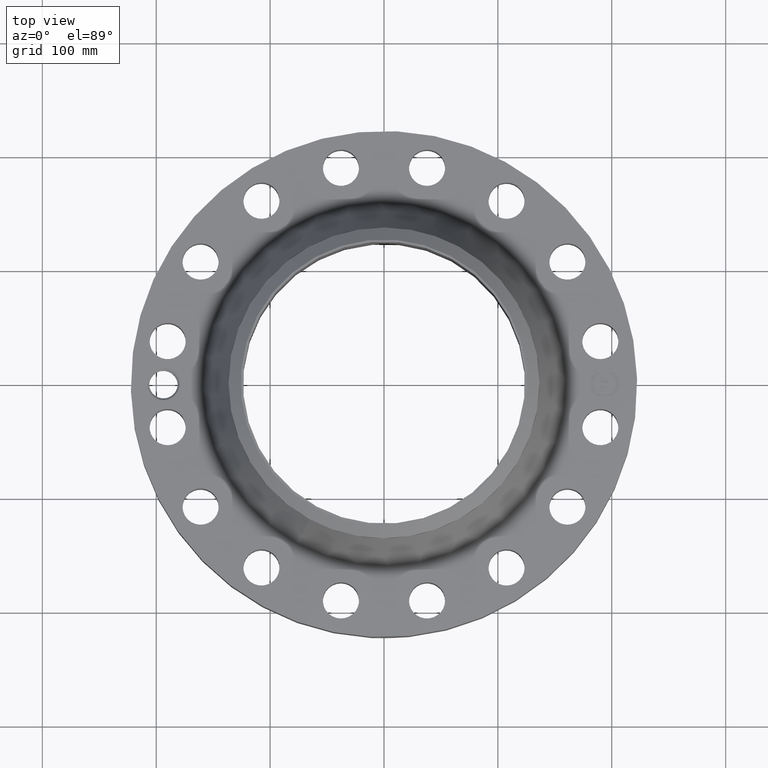
[diagram: clean part render]
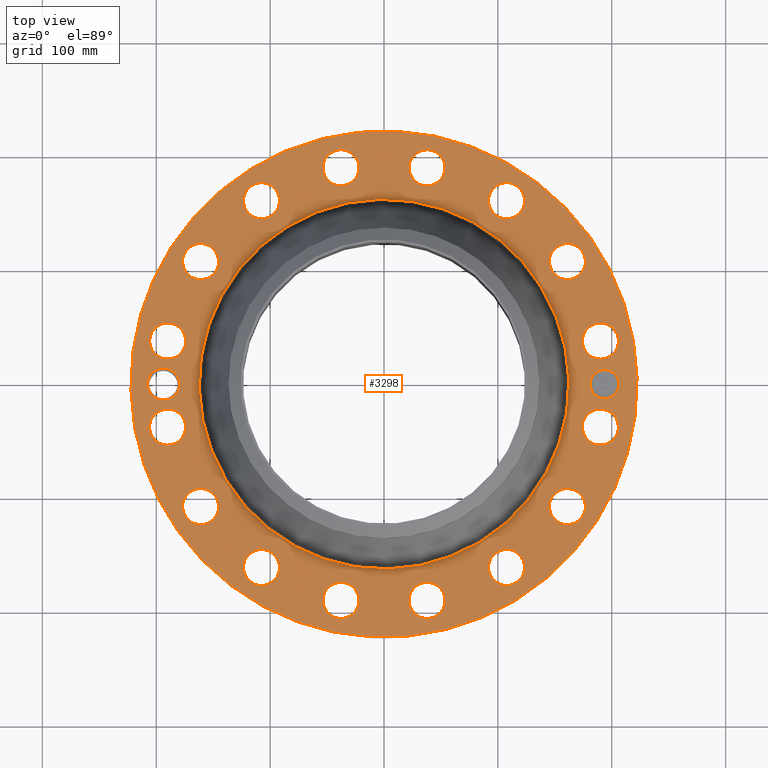
[diagram: same view with one face highlighted and labeled with its STEP entity id]
A machine part, top view. The second image highlights one B-rep face of the part: STEP entity #3298.
In plain terms, the highlighted planar face has unit normal (0, 0, -1).
Its self-contained STEP definition (entity closure, byte-faithful):
#2190=AXIS2_PLACEMENT_3D('Circle Axis2P3D',#2188,#2189,$) ;
#2216=AXIS2_PLACEMENT_3D('Circle Axis2P3D',#2214,#2215,$) ;
#2914=AXIS2_PLACEMENT_3D('Plane Axis2P3D',#2911,#2912,#2913) ;
#2918=AXIS2_PLACEMENT_3D('Circle Axis2P3D',#2916,#2917,$) ;
#2927=AXIS2_PLACEMENT_3D('Circle Axis2P3D',#2925,#2926,$) ;
#2964=AXIS2_PLACEMENT_3D('Circle Axis2P3D',#2962,#2963,$) ;
#2971=AXIS2_PLACEMENT_3D('Circle Axis2P3D',#2969,#2970,$) ;
#2978=AXIS2_PLACEMENT_3D('Circle Axis2P3D',#2976,#2977,$) ;
#2990=AXIS2_PLACEMENT_3D('Circle Axis2P3D',#2988,#2989,$) ;
#2999=AXIS2_PLACEMENT_3D('Circle Axis2P3D',#2997,#2998,$) ;
#3012=AXIS2_PLACEMENT_3D('Circle Axis2P3D',#3010,#3011,$) ;
#3021=AXIS2_PLACEMENT_3D('Circle Axis2P3D',#3019,#3020,$) ;
#3030=AXIS2_PLACEMENT_3D('Circle Axis2P3D',#3028,#3029,$) ;
#3039=AXIS2_PLACEMENT_3D('Circle Axis2P3D',#3037,#3038,$) ;
#3048=AXIS2_PLACEMENT_3D('Circle Axis2P3D',#3046,#3047,$) ;
#3057=AXIS2_PLACEMENT_3D('Circle Axis2P3D',#3055,#3056,$) ;
#3066=AXIS2_PLACEMENT_3D('Circle Axis2P3D',#3064,#3065,$) ;
#3075=AXIS2_PLACEMENT_3D('Circle Axis2P3D',#3073,#3074,$) ;
#3084=AXIS2_PLACEMENT_3D('Circle Axis2P3D',#3082,#3083,$) ;
#3093=AXIS2_PLACEMENT_3D('Circle Axis2P3D',#3091,#3092,$) ;
#3102=AXIS2_PLACEMENT_3D('Circle Axis2P3D',#3100,#3101,$) ;
#3111=AXIS2_PLACEMENT_3D('Circle Axis2P3D',#3109,#3110,$) ;
#3120=AXIS2_PLACEMENT_3D('Circle Axis2P3D',#3118,#3119,$) ;
#3129=AXIS2_PLACEMENT_3D('Circle Axis2P3D',#3127,#3128,$) ;
#3138=AXIS2_PLACEMENT_3D('Circle Axis2P3D',#3136,#3137,$) ;
#3147=AXIS2_PLACEMENT_3D('Circle Axis2P3D',#3145,#3146,$) ;
#3156=AXIS2_PLACEMENT_3D('Circle Axis2P3D',#3154,#3155,$) ;
#3165=AXIS2_PLACEMENT_3D('Circle Axis2P3D',#3163,#3164,$) ;
#3174=AXIS2_PLACEMENT_3D('Circle Axis2P3D',#3172,#3173,$) ;
#3183=AXIS2_PLACEMENT_3D('Circle Axis2P3D',#3181,#3182,$) ;
#3192=AXIS2_PLACEMENT_3D('Circle Axis2P3D',#3190,#3191,$) ;
#3201=AXIS2_PLACEMENT_3D('Circle Axis2P3D',#3199,#3200,$) ;
#3210=AXIS2_PLACEMENT_3D('Circle Axis2P3D',#3208,#3209,$) ;
#3219=AXIS2_PLACEMENT_3D('Circle Axis2P3D',#3217,#3218,$) ;
#3228=AXIS2_PLACEMENT_3D('Circle Axis2P3D',#3226,#3227,$) ;
#3237=AXIS2_PLACEMENT_3D('Circle Axis2P3D',#3235,#3236,$) ;
#3246=AXIS2_PLACEMENT_3D('Circle Axis2P3D',#3244,#3245,$) ;
#3255=AXIS2_PLACEMENT_3D('Circle Axis2P3D',#3253,#3254,$) ;
#3264=AXIS2_PLACEMENT_3D('Circle Axis2P3D',#3262,#3263,$) ;
#3273=AXIS2_PLACEMENT_3D('Circle Axis2P3D',#3271,#3272,$) ;
#3282=AXIS2_PLACEMENT_3D('Circle Axis2P3D',#3280,#3281,$) ;
#3291=AXIS2_PLACEMENT_3D('Circle Axis2P3D',#3289,#3290,$) ;
#2188=CARTESIAN_POINT('Axis2P3D Location',(0.,0.,2.43200000001)) ;
#2192=CARTESIAN_POINT('Vertex',(-3.06323934998,-5.60722201881,2.43200000001)) ;
#2194=CARTESIAN_POINT('Vertex',(3.06323934998,5.60722201881,2.43200000001)) ;
#2214=CARTESIAN_POINT('Axis2P3D Location',(0.,0.,2.43200000001)) ;
#2911=CARTESIAN_POINT('Axis2P3D Location',(0.,8.75000000003,2.43200000001)) ;
#2916=CARTESIAN_POINT('Axis2P3D Location',(0.,0.,2.43200000001)) ;
#2920=CARTESIAN_POINT('Vertex',(4.1949734628,7.67884741657,2.43200000001)) ;
#2922=CARTESIAN_POINT('Vertex',(-4.1949734628,-7.67884741657,2.43200000001)) ;
#2925=CARTESIAN_POINT('Axis2P3D Location',(0.,0.,2.43200000001)) ;
#2935=CARTESIAN_POINT('Control Point',(-7.06250000003,-1.1189649382E-015,2.43200000001)) ;
#2936=CARTESIAN_POINT('Control Point',(-7.0644627071,0.0486163891035,2.43200000001)) ;
#2937=CARTESIAN_POINT('Control Point',(-7.07168226292,0.096921534592,2.43200000001)) ;
#2938=CARTESIAN_POINT('Control Point',(-7.08411615333,0.144151114334,2.43200000001)) ;
#2939=CARTESIAN_POINT('Control Point',(-7.10232815503,0.191577647422,2.43200000001)) ;
#2940=CARTESIAN_POINT('Control Point',(-7.12559967874,0.236271997067,2.43200000001)) ;
#2941=CARTESIAN_POINT('Control Point',(-7.1266042728,0.238178606451,2.43200000001)) ;
#2942=CARTESIAN_POINT('Control Point',(-7.12761805794,0.240080097807,2.43200000001)) ;
#2943=CARTESIAN_POINT('Control Point',(-7.12864100075,0.241976411744,2.43200000001)) ;
#2944=CARTESIAN_POINT('Vertex',(-7.06250000003,-1.1189649382E-015,2.43200000001)) ;
#2946=CARTESIAN_POINT('Vertex',(-7.12864100075,0.241976411744,2.43200000001)) ;
#2950=CARTESIAN_POINT('Control Point',(-7.06250000003,0.,2.43200000001)) ;
#2951=CARTESIAN_POINT('Control Point',(-7.06446331377,-0.0486314172929,2.43200000001)) ;
#2952=CARTESIAN_POINT('Control Point',(-7.07168673508,-0.0969513969447,2.43200000001)) ;
#2953=CARTESIAN_POINT('Control Point',(-7.08411919902,-0.144176906439,2.43200000001)) ;
#2954=CARTESIAN_POINT('Control Point',(-7.10234823128,-0.191650860834,2.43200000001)) ;
#2955=CARTESIAN_POINT('Control Point',(-7.1256352366,-0.236368689457,2.43200000001)) ;
#2956=CARTESIAN_POINT('Control Point',(-7.12667414521,-0.238339350733,2.43200000001)) ;
#2957=CARTESIAN_POINT('Control Point',(-7.12772285779,-0.240304498267,2.43200000001)) ;
#2958=CARTESIAN_POINT('Control Point',(-7.12878133662,-0.242264066853,2.43200000001)) ;
#2959=CARTESIAN_POINT('Vertex',(-7.12878133662,-0.242264066853,2.43200000001)) ;
#2962=CARTESIAN_POINT('Axis2P3D Location',(-7.62500000003,0.,2.43200000001)) ;
#2966=CARTESIAN_POINT('Vertex',(-7.14039890935,-0.264738782418,2.43200000001)) ;
#2969=CARTESIAN_POINT('Axis2P3D Location',(-7.62500000003,0.,2.43200000001)) ;
#2973=CARTESIAN_POINT('Vertex',(-8.10960109071,0.264738782418,2.43200000001)) ;
#2976=CARTESIAN_POINT('Axis2P3D Location',(-7.62500000003,0.,2.43200000001)) ;
#2988=CARTESIAN_POINT('Axis2P3D Location',(7.4784877631,-1.48756370538,2.43200000001)) ;
#2992=CARTESIAN_POINT('Vertex',(6.92999866192,-1.18792274375,2.43200000001)) ;
#2994=CARTESIAN_POINT('Vertex',(8.02697686429,-1.78720466701,2.43200000001)) ;
#2997=CARTESIAN_POINT('Axis2P3D Location',(7.4784877631,-1.48756370538,2.43200000001)) ;
#3010=CARTESIAN_POINT('Axis2P3D Location',(6.33995579383,-4.23622302679,2.43200000001)) ;
#3014=CARTESIAN_POINT('Vertex',(6.73202601655,-4.7229528702,2.43200000001)) ;
#3016=CARTESIAN_POINT('Vertex',(5.94788557112,-3.74949318338,2.43200000001)) ;
#3019=CARTESIAN_POINT('Axis2P3D Location',(6.33995579383,-4.23622302679,2.43200000001)) ;
#3028=CARTESIAN_POINT('Axis2P3D Location',(4.23622302679,-6.33995579383,2.43200000001)) ;
#3032=CARTESIAN_POINT('Vertex',(4.41218523376,-6.93967431258,2.43200000001)) ;
#3034=CARTESIAN_POINT('Vertex',(4.06026081983,-5.74023727509,2.43200000001)) ;
#3037=CARTESIAN_POINT('Axis2P3D Location',(4.23622302679,-6.33995579383,2.43200000001)) ;
#3046=CARTESIAN_POINT('Axis2P3D Location',(1.48756370538,-7.4784877631,2.43200000001)) ;
#3050=CARTESIAN_POINT('Vertex',(1.42062924568,-8.09989324917,2.43200000001)) ;
#3052=CARTESIAN_POINT('Vertex',(1.55449816507,-6.85708227704,2.43200000001)) ;
#3055=CARTESIAN_POINT('Axis2P3D Location',(1.48756370538,-7.4784877631,2.43200000001)) ;
#3064=CARTESIAN_POINT('Axis2P3D Location',(-1.48756370538,-7.4784877631,2.43200000001)) ;
#3068=CARTESIAN_POINT('Vertex',(-1.78720466701,-8.02697686429,2.43200000001)) ;
#3070=CARTESIAN_POINT('Vertex',(-1.18792274375,-6.92999866192,2.43200000001)) ;
#3073=CARTESIAN_POINT('Axis2P3D Location',(-1.48756370538,-7.4784877631,2.43200000001)) ;
#3082=CARTESIAN_POINT('Axis2P3D Location',(-4.23622302679,-6.33995579383,2.43200000001)) ;
#3086=CARTESIAN_POINT('Vertex',(-4.7229528702,-6.73202601655,2.43200000001)) ;
#3088=CARTESIAN_POINT('Vertex',(-3.74949318338,-5.94788557112,2.43200000001)) ;
#3091=CARTESIAN_POINT('Axis2P3D Location',(-4.23622302679,-6.33995579383,2.43200000001)) ;
#3100=CARTESIAN_POINT('Axis2P3D Location',(-6.33995579383,-4.23622302679,2.43200000001)) ;
#3104=CARTESIAN_POINT('Vertex',(-6.93967431258,-4.41218523376,2.43200000001)) ;
#3106=CARTESIAN_POINT('Vertex',(-5.74023727509,-4.06026081983,2.43200000001)) ;
#3109=CARTESIAN_POINT('Axis2P3D Location',(-6.33995579383,-4.23622302679,2.43200000001)) ;
#3118=CARTESIAN_POINT('Axis2P3D Location',(-7.4784877631,-1.48756370538,2.43200000001)) ;
#3122=CARTESIAN_POINT('Vertex',(-8.09989324917,-1.42062924568,2.43200000001)) ;
#3124=CARTESIAN_POINT('Vertex',(-6.85708227704,-1.55449816507,2.43200000001)) ;
#3127=CARTESIAN_POINT('Axis2P3D Location',(-7.4784877631,-1.48756370538,2.43200000001)) ;
#3136=CARTESIAN_POINT('Axis2P3D Location',(-7.4784877631,1.48756370538,2.43200000001)) ;
#3140=CARTESIAN_POINT('Vertex',(-8.02697686429,1.78720466701,2.43200000001)) ;
#3142=CARTESIAN_POINT('Vertex',(-6.92999866192,1.18792274375,2.43200000001)) ;
#3145=CARTESIAN_POINT('Axis2P3D Location',(-7.4784877631,1.48756370538,2.43200000001)) ;
#3154=CARTESIAN_POINT('Axis2P3D Location',(-6.33995579383,4.23622302679,2.43200000001)) ;
#3158=CARTESIAN_POINT('Vertex',(-6.73202601655,4.7229528702,2.43200000001)) ;
#3160=CARTESIAN_POINT('Vertex',(-5.94788557112,3.74949318338,2.43200000001)) ;
#3163=CARTESIAN_POINT('Axis2P3D Location',(-6.33995579383,4.23622302679,2.43200000001)) ;
#3172=CARTESIAN_POINT('Axis2P3D Location',(-4.23622302679,6.33995579383,2.43200000001)) ;
#3176=CARTESIAN_POINT('Vertex',(-4.41218523376,6.93967431258,2.43200000001)) ;
#3178=CARTESIAN_POINT('Vertex',(-4.06026081983,5.74023727509,2.43200000001)) ;
#3181=CARTESIAN_POINT('Axis2P3D Location',(-4.23622302679,6.33995579383,2.43200000001)) ;
#3190=CARTESIAN_POINT('Axis2P3D Location',(-1.48756370538,7.4784877631,2.43200000001)) ;
#3194=CARTESIAN_POINT('Vertex',(-1.42062924568,8.09989324917,2.43200000001)) ;
#3196=CARTESIAN_POINT('Vertex',(-1.55449816507,6.85708227704,2.43200000001)) ;
#3199=CARTESIAN_POINT('Axis2P3D Location',(-1.48756370538,7.4784877631,2.43200000001)) ;
#3208=CARTESIAN_POINT('Axis2P3D Location',(1.48756370538,7.4784877631,2.43200000001)) ;
#3212=CARTESIAN_POINT('Vertex',(1.78720466701,8.02697686429,2.43200000001)) ;
#3214=CARTESIAN_POINT('Vertex',(1.18792274375,6.92999866192,2.43200000001)) ;
#3217=CARTESIAN_POINT('Axis2P3D Location',(1.48756370538,7.4784877631,2.43200000001)) ;
#3226=CARTESIAN_POINT('Axis2P3D Location',(4.23622302679,6.33995579383,2.43200000001)) ;
#3230=CARTESIAN_POINT('Vertex',(4.7229528702,6.73202601655,2.43200000001)) ;
#3232=CARTESIAN_POINT('Vertex',(3.74949318338,5.94788557112,2.43200000001)) ;
#3235=CARTESIAN_POINT('Axis2P3D Location',(4.23622302679,6.33995579383,2.43200000001)) ;
#3244=CARTESIAN_POINT('Axis2P3D Location',(6.33995579383,4.23622302679,2.43200000001)) ;
#3248=CARTESIAN_POINT('Vertex',(6.93967431258,4.41218523376,2.43200000001)) ;
#3250=CARTESIAN_POINT('Vertex',(5.74023727509,4.06026081983,2.43200000001)) ;
#3253=CARTESIAN_POINT('Axis2P3D Location',(6.33995579383,4.23622302679,2.43200000001)) ;
#3262=CARTESIAN_POINT('Axis2P3D Location',(7.4784877631,1.48756370538,2.43200000001)) ;
#3266=CARTESIAN_POINT('Vertex',(8.09989324917,1.42062924568,2.43200000001)) ;
#3268=CARTESIAN_POINT('Vertex',(6.85708227704,1.55449816507,2.43200000001)) ;
#3271=CARTESIAN_POINT('Axis2P3D Location',(7.4784877631,1.48756370538,2.43200000001)) ;
#3280=CARTESIAN_POINT('Axis2P3D Location',(7.62500000003,-3.35689481461E-014,2.43200000001)) ;
#3284=CARTESIAN_POINT('Vertex',(7.62500000003,0.499999995002,2.43200000001)) ;
#3286=CARTESIAN_POINT('Vertex',(7.62500000003,-0.499999995002,2.43200000001)) ;
#3289=CARTESIAN_POINT('Axis2P3D Location',(7.62500000003,-3.24499832079E-014,2.43200000001)) ;
#2189=DIRECTION('Axis2P3D Direction',(0.,0.,-0.0393700787402)) ;
#2215=DIRECTION('Axis2P3D Direction',(0.,0.,-0.0393700787402)) ;
#2912=DIRECTION('Axis2P3D Direction',(0.,0.,-0.0393700787402)) ;
#2913=DIRECTION('Axis2P3D XDirection',(0.0393700787402,0.,0.)) ;
#2917=DIRECTION('Axis2P3D Direction',(0.,0.,-0.0393700787402)) ;
#2926=DIRECTION('Axis2P3D Direction',(0.,0.,-0.0393700787402)) ;
#2963=DIRECTION('Axis2P3D Direction',(0.,0.,-0.0393700787402)) ;
#2970=DIRECTION('Axis2P3D Direction',(0.,0.,-0.0393700787402)) ;
#2977=DIRECTION('Axis2P3D Direction',(0.,0.,-0.0393700787402)) ;
#2989=DIRECTION('Axis2P3D Direction',(0.,0.,-0.0393700787402)) ;
#2998=DIRECTION('Axis2P3D Direction',(0.,0.,-0.0393700787402)) ;
#3011=DIRECTION('Axis2P3D Direction',(0.,0.,-0.0393700787402)) ;
#3020=DIRECTION('Axis2P3D Direction',(0.,0.,-0.0393700787402)) ;
#3029=DIRECTION('Axis2P3D Direction',(0.,0.,-0.0393700787402)) ;
#3038=DIRECTION('Axis2P3D Direction',(0.,0.,-0.0393700787402)) ;
#3047=DIRECTION('Axis2P3D Direction',(0.,0.,-0.0393700787402)) ;
#3056=DIRECTION('Axis2P3D Direction',(0.,0.,-0.0393700787402)) ;
#3065=DIRECTION('Axis2P3D Direction',(0.,0.,-0.0393700787402)) ;
#3074=DIRECTION('Axis2P3D Direction',(0.,0.,-0.0393700787402)) ;
#3083=DIRECTION('Axis2P3D Direction',(0.,0.,-0.0393700787402)) ;
#3092=DIRECTION('Axis2P3D Direction',(0.,0.,-0.0393700787402)) ;
#3101=DIRECTION('Axis2P3D Direction',(0.,0.,-0.0393700787402)) ;
#3110=DIRECTION('Axis2P3D Direction',(0.,0.,-0.0393700787402)) ;
#3119=DIRECTION('Axis2P3D Direction',(0.,0.,-0.0393700787402)) ;
#3128=DIRECTION('Axis2P3D Direction',(0.,0.,-0.0393700787402)) ;
#3137=DIRECTION('Axis2P3D Direction',(0.,0.,-0.0393700787402)) ;
#3146=DIRECTION('Axis2P3D Direction',(0.,0.,-0.0393700787402)) ;
#3155=DIRECTION('Axis2P3D Direction',(0.,0.,-0.0393700787402)) ;
#3164=DIRECTION('Axis2P3D Direction',(0.,0.,-0.0393700787402)) ;
#3173=DIRECTION('Axis2P3D Direction',(0.,0.,-0.0393700787402)) ;
#3182=DIRECTION('Axis2P3D Direction',(0.,0.,-0.0393700787402)) ;
#3191=DIRECTION('Axis2P3D Direction',(0.,0.,-0.0393700787402)) ;
#3200=DIRECTION('Axis2P3D Direction',(0.,0.,-0.0393700787402)) ;
#3209=DIRECTION('Axis2P3D Direction',(0.,0.,-0.0393700787402)) ;
#3218=DIRECTION('Axis2P3D Direction',(0.,0.,-0.0393700787402)) ;
#3227=DIRECTION('Axis2P3D Direction',(0.,0.,-0.0393700787402)) ;
#3236=DIRECTION('Axis2P3D Direction',(0.,0.,-0.0393700787402)) ;
#3245=DIRECTION('Axis2P3D Direction',(0.,0.,-0.0393700787402)) ;
#3254=DIRECTION('Axis2P3D Direction',(0.,0.,-0.0393700787402)) ;
#3263=DIRECTION('Axis2P3D Direction',(0.,0.,-0.0393700787402)) ;
#3272=DIRECTION('Axis2P3D Direction',(0.,0.,-0.0393700787402)) ;
#3281=DIRECTION('Axis2P3D Direction',(0.,0.,-0.0393700787402)) ;
#3290=DIRECTION('Axis2P3D Direction',(0.,0.,-0.0393700787402)) ;
#2931=ORIENTED_EDGE('',*,*,#2924,.F.) ;
#2932=ORIENTED_EDGE('',*,*,#2929,.F.) ;
#2982=ORIENTED_EDGE('',*,*,#2948,.F.) ;
#2983=ORIENTED_EDGE('',*,*,#2961,.T.) ;
#2984=ORIENTED_EDGE('',*,*,#2968,.T.) ;
#2985=ORIENTED_EDGE('',*,*,#2975,.T.) ;
#2986=ORIENTED_EDGE('',*,*,#2980,.T.) ;
#3003=ORIENTED_EDGE('',*,*,#2996,.T.) ;
#3004=ORIENTED_EDGE('',*,*,#3001,.T.) ;
#3007=ORIENTED_EDGE('',*,*,#2196,.T.) ;
#3008=ORIENTED_EDGE('',*,*,#2218,.T.) ;
#3025=ORIENTED_EDGE('',*,*,#3018,.T.) ;
#3026=ORIENTED_EDGE('',*,*,#3023,.T.) ;
#3043=ORIENTED_EDGE('',*,*,#3036,.T.) ;
#3044=ORIENTED_EDGE('',*,*,#3041,.T.) ;
#3061=ORIENTED_EDGE('',*,*,#3054,.T.) ;
#3062=ORIENTED_EDGE('',*,*,#3059,.T.) ;
#3079=ORIENTED_EDGE('',*,*,#3072,.T.) ;
#3080=ORIENTED_EDGE('',*,*,#3077,.T.) ;
#3097=ORIENTED_EDGE('',*,*,#3090,.T.) ;
#3098=ORIENTED_EDGE('',*,*,#3095,.T.) ;
#3115=ORIENTED_EDGE('',*,*,#3108,.T.) ;
#3116=ORIENTED_EDGE('',*,*,#3113,.T.) ;
#3133=ORIENTED_EDGE('',*,*,#3126,.T.) ;
#3134=ORIENTED_EDGE('',*,*,#3131,.T.) ;
#3151=ORIENTED_EDGE('',*,*,#3144,.T.) ;
#3152=ORIENTED_EDGE('',*,*,#3149,.T.) ;
#3169=ORIENTED_EDGE('',*,*,#3162,.T.) ;
#3170=ORIENTED_EDGE('',*,*,#3167,.T.) ;
#3187=ORIENTED_EDGE('',*,*,#3180,.T.) ;
#3188=ORIENTED_EDGE('',*,*,#3185,.T.) ;
#3205=ORIENTED_EDGE('',*,*,#3198,.T.) ;
#3206=ORIENTED_EDGE('',*,*,#3203,.T.) ;
#3223=ORIENTED_EDGE('',*,*,#3216,.T.) ;
#3224=ORIENTED_EDGE('',*,*,#3221,.T.) ;
#3241=ORIENTED_EDGE('',*,*,#3234,.T.) ;
#3242=ORIENTED_EDGE('',*,*,#3239,.T.) ;
#3259=ORIENTED_EDGE('',*,*,#3252,.T.) ;
#3260=ORIENTED_EDGE('',*,*,#3257,.T.) ;
#3277=ORIENTED_EDGE('',*,*,#3270,.T.) ;
#3278=ORIENTED_EDGE('',*,*,#3275,.T.) ;
#3295=ORIENTED_EDGE('',*,*,#3288,.T.) ;
#3296=ORIENTED_EDGE('',*,*,#3293,.T.) ;
#2987=FACE_BOUND('',#2981,.T.) ;
#3005=FACE_BOUND('',#3002,.T.) ;
#3009=FACE_BOUND('',#3006,.T.) ;
#3027=FACE_BOUND('',#3024,.T.) ;
#3045=FACE_BOUND('',#3042,.T.) ;
#3063=FACE_BOUND('',#3060,.T.) ;
#3081=FACE_BOUND('',#3078,.T.) ;
#3099=FACE_BOUND('',#3096,.T.) ;
#3117=FACE_BOUND('',#3114,.T.) ;
#3135=FACE_BOUND('',#3132,.T.) ;
#3153=FACE_BOUND('',#3150,.T.) ;
#3171=FACE_BOUND('',#3168,.T.) ;
#3189=FACE_BOUND('',#3186,.T.) ;
#3207=FACE_BOUND('',#3204,.T.) ;
#3225=FACE_BOUND('',#3222,.T.) ;
#3243=FACE_BOUND('',#3240,.T.) ;
#3261=FACE_BOUND('',#3258,.T.) ;
#3279=FACE_BOUND('',#3276,.T.) ;
#3297=FACE_BOUND('',#3294,.T.) ;
#3298=ADVANCED_FACE('PartBody',(#2933,#2987,#3005,#3009,#3027,#3045,#3063,#3081,#3099,#3117,#3135,#3153,#3171,#3189,#3207,#3225,#3243,#3261,#3279,#3297),#2915,.F.) ;
#2934=B_SPLINE_CURVE_WITH_KNOTS('',5,(#2935,#2936,#2937,#2938,#2939,#2940,#2941,#2942,#2943),.UNSPECIFIED.,.F.,.U.,(6,3,6),(0.,8.4763650655,8.85511629923),.UNSPECIFIED.) ;
#2949=B_SPLINE_CURVE_WITH_KNOTS('',5,(#2950,#2951,#2952,#2953,#2954,#2955,#2956,#2957,#2958),.UNSPECIFIED.,.F.,.U.,(6,3,6),(0.,8.47898526042,8.87100044023),.UNSPECIFIED.) ;
#2191=CIRCLE('generated circle',#2190,6.38939543959) ;
#2217=CIRCLE('generated circle',#2216,6.38939543959) ;
#2919=CIRCLE('generated circle',#2918,8.75000000003) ;
#2928=CIRCLE('generated circle',#2927,8.75000000003) ;
#2965=CIRCLE('generated circle',#2964,0.552200000002) ;
#2972=CIRCLE('generated circle',#2971,0.552200000002) ;
#2979=CIRCLE('generated circle',#2978,0.552200000002) ;
#2991=CIRCLE('generated circle',#2990,0.625000000002) ;
#3000=CIRCLE('generated circle',#2999,0.625000000002) ;
#3013=CIRCLE('generated circle',#3012,0.625000000003) ;
#3022=CIRCLE('generated circle',#3021,0.625000000003) ;
#3031=CIRCLE('generated circle',#3030,0.625000000002) ;
#3040=CIRCLE('generated circle',#3039,0.625000000002) ;
#3049=CIRCLE('generated circle',#3048,0.625000000003) ;
#3058=CIRCLE('generated circle',#3057,0.625000000003) ;
#3067=CIRCLE('generated circle',#3066,0.625000000002) ;
#3076=CIRCLE('generated circle',#3075,0.625000000002) ;
#3085=CIRCLE('generated circle',#3084,0.625000000003) ;
#3094=CIRCLE('generated circle',#3093,0.625000000003) ;
#3103=CIRCLE('generated circle',#3102,0.625000000002) ;
#3112=CIRCLE('generated circle',#3111,0.625000000002) ;
#3121=CIRCLE('generated circle',#3120,0.625000000003) ;
#3130=CIRCLE('generated circle',#3129,0.625000000003) ;
#3139=CIRCLE('generated circle',#3138,0.625000000002) ;
#3148=CIRCLE('generated circle',#3147,0.625000000002) ;
#3157=CIRCLE('generated circle',#3156,0.625000000003) ;
#3166=CIRCLE('generated circle',#3165,0.625000000003) ;
#3175=CIRCLE('generated circle',#3174,0.625000000002) ;
#3184=CIRCLE('generated circle',#3183,0.625000000002) ;
#3193=CIRCLE('generated circle',#3192,0.625000000003) ;
#3202=CIRCLE('generated circle',#3201,0.625000000003) ;
#3211=CIRCLE('generated circle',#3210,0.625000000002) ;
#3220=CIRCLE('generated circle',#3219,0.625000000002) ;
#3229=CIRCLE('generated circle',#3228,0.625000000003) ;
#3238=CIRCLE('generated circle',#3237,0.625000000003) ;
#3247=CIRCLE('generated circle',#3246,0.625000000003) ;
#3256=CIRCLE('generated circle',#3255,0.625000000003) ;
#3265=CIRCLE('generated circle',#3264,0.625000000003) ;
#3274=CIRCLE('generated circle',#3273,0.625000000003) ;
#3283=CIRCLE('generated circle',#3282,0.499999995002) ;
#3292=CIRCLE('generated circle',#3291,0.499999995002) ;
#2196=EDGE_CURVE('',#2193,#2195,#2191,.T.) ;
#2218=EDGE_CURVE('',#2195,#2193,#2217,.T.) ;
#2924=EDGE_CURVE('',#2921,#2923,#2919,.T.) ;
#2929=EDGE_CURVE('',#2923,#2921,#2928,.T.) ;
#2948=EDGE_CURVE('',#2945,#2947,#2934,.T.) ;
#2961=EDGE_CURVE('',#2945,#2960,#2949,.T.) ;
#2968=EDGE_CURVE('',#2960,#2967,#2965,.T.) ;
#2975=EDGE_CURVE('',#2967,#2974,#2972,.T.) ;
#2980=EDGE_CURVE('',#2974,#2947,#2979,.T.) ;
#2996=EDGE_CURVE('',#2993,#2995,#2991,.T.) ;
#3001=EDGE_CURVE('',#2995,#2993,#3000,.T.) ;
#3018=EDGE_CURVE('',#3015,#3017,#3013,.T.) ;
#3023=EDGE_CURVE('',#3017,#3015,#3022,.T.) ;
#3036=EDGE_CURVE('',#3033,#3035,#3031,.T.) ;
#3041=EDGE_CURVE('',#3035,#3033,#3040,.T.) ;
#3054=EDGE_CURVE('',#3051,#3053,#3049,.T.) ;
#3059=EDGE_CURVE('',#3053,#3051,#3058,.T.) ;
#3072=EDGE_CURVE('',#3069,#3071,#3067,.T.) ;
#3077=EDGE_CURVE('',#3071,#3069,#3076,.T.) ;
#3090=EDGE_CURVE('',#3087,#3089,#3085,.T.) ;
#3095=EDGE_CURVE('',#3089,#3087,#3094,.T.) ;
#3108=EDGE_CURVE('',#3105,#3107,#3103,.T.) ;
#3113=EDGE_CURVE('',#3107,#3105,#3112,.T.) ;
#3126=EDGE_CURVE('',#3123,#3125,#3121,.T.) ;
#3131=EDGE_CURVE('',#3125,#3123,#3130,.T.) ;
#3144=EDGE_CURVE('',#3141,#3143,#3139,.T.) ;
#3149=EDGE_CURVE('',#3143,#3141,#3148,.T.) ;
#3162=EDGE_CURVE('',#3159,#3161,#3157,.T.) ;
#3167=EDGE_CURVE('',#3161,#3159,#3166,.T.) ;
#3180=EDGE_CURVE('',#3177,#3179,#3175,.T.) ;
#3185=EDGE_CURVE('',#3179,#3177,#3184,.T.) ;
#3198=EDGE_CURVE('',#3195,#3197,#3193,.T.) ;
#3203=EDGE_CURVE('',#3197,#3195,#3202,.T.) ;
#3216=EDGE_CURVE('',#3213,#3215,#3211,.T.) ;
#3221=EDGE_CURVE('',#3215,#3213,#3220,.T.) ;
#3234=EDGE_CURVE('',#3231,#3233,#3229,.T.) ;
#3239=EDGE_CURVE('',#3233,#3231,#3238,.T.) ;
#3252=EDGE_CURVE('',#3249,#3251,#3247,.T.) ;
#3257=EDGE_CURVE('',#3251,#3249,#3256,.T.) ;
#3270=EDGE_CURVE('',#3267,#3269,#3265,.T.) ;
#3275=EDGE_CURVE('',#3269,#3267,#3274,.T.) ;
#3288=EDGE_CURVE('',#3285,#3287,#3283,.T.) ;
#3293=EDGE_CURVE('',#3287,#3285,#3292,.T.) ;
#2930=EDGE_LOOP('',(#2931,#2932)) ;
#2981=EDGE_LOOP('',(#2982,#2983,#2984,#2985,#2986)) ;
#3002=EDGE_LOOP('',(#3003,#3004)) ;
#3006=EDGE_LOOP('',(#3007,#3008)) ;
#3024=EDGE_LOOP('',(#3025,#3026)) ;
#3042=EDGE_LOOP('',(#3043,#3044)) ;
#3060=EDGE_LOOP('',(#3061,#3062)) ;
#3078=EDGE_LOOP('',(#3079,#3080)) ;
#3096=EDGE_LOOP('',(#3097,#3098)) ;
#3114=EDGE_LOOP('',(#3115,#3116)) ;
#3132=EDGE_LOOP('',(#3133,#3134)) ;
#3150=EDGE_LOOP('',(#3151,#3152)) ;
#3168=EDGE_LOOP('',(#3169,#3170)) ;
#3186=EDGE_LOOP('',(#3187,#3188)) ;
#3204=EDGE_LOOP('',(#3205,#3206)) ;
#3222=EDGE_LOOP('',(#3223,#3224)) ;
#3240=EDGE_LOOP('',(#3241,#3242)) ;
#3258=EDGE_LOOP('',(#3259,#3260)) ;
#3276=EDGE_LOOP('',(#3277,#3278)) ;
#3294=EDGE_LOOP('',(#3295,#3296)) ;
#2933=FACE_OUTER_BOUND('',#2930,.T.) ;
#2915=PLANE('',#2914) ;
#2193=VERTEX_POINT('',#2192) ;
#2195=VERTEX_POINT('',#2194) ;
#2921=VERTEX_POINT('',#2920) ;
#2923=VERTEX_POINT('',#2922) ;
#2945=VERTEX_POINT('',#2944) ;
#2947=VERTEX_POINT('',#2946) ;
#2960=VERTEX_POINT('',#2959) ;
#2967=VERTEX_POINT('',#2966) ;
#2974=VERTEX_POINT('',#2973) ;
#2993=VERTEX_POINT('',#2992) ;
#2995=VERTEX_POINT('',#2994) ;
#3015=VERTEX_POINT('',#3014) ;
#3017=VERTEX_POINT('',#3016) ;
#3033=VERTEX_POINT('',#3032) ;
#3035=VERTEX_POINT('',#3034) ;
#3051=VERTEX_POINT('',#3050) ;
#3053=VERTEX_POINT('',#3052) ;
#3069=VERTEX_POINT('',#3068) ;
#3071=VERTEX_POINT('',#3070) ;
#3087=VERTEX_POINT('',#3086) ;
#3089=VERTEX_POINT('',#3088) ;
#3105=VERTEX_POINT('',#3104) ;
#3107=VERTEX_POINT('',#3106) ;
#3123=VERTEX_POINT('',#3122) ;
#3125=VERTEX_POINT('',#3124) ;
#3141=VERTEX_POINT('',#3140) ;
#3143=VERTEX_POINT('',#3142) ;
#3159=VERTEX_POINT('',#3158) ;
#3161=VERTEX_POINT('',#3160) ;
#3177=VERTEX_POINT('',#3176) ;
#3179=VERTEX_POINT('',#3178) ;
#3195=VERTEX_POINT('',#3194) ;
#3197=VERTEX_POINT('',#3196) ;
#3213=VERTEX_POINT('',#3212) ;
#3215=VERTEX_POINT('',#3214) ;
#3231=VERTEX_POINT('',#3230) ;
#3233=VERTEX_POINT('',#3232) ;
#3249=VERTEX_POINT('',#3248) ;
#3251=VERTEX_POINT('',#3250) ;
#3267=VERTEX_POINT('',#3266) ;
#3269=VERTEX_POINT('',#3268) ;
#3285=VERTEX_POINT('',#3284) ;
#3287=VERTEX_POINT('',#3286) ;